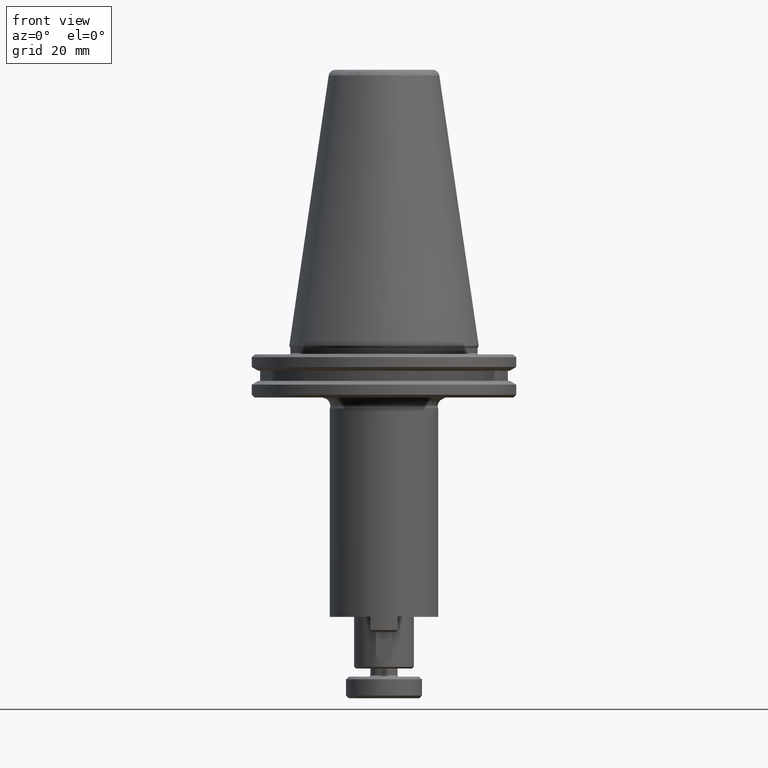
[diagram: clean part render]
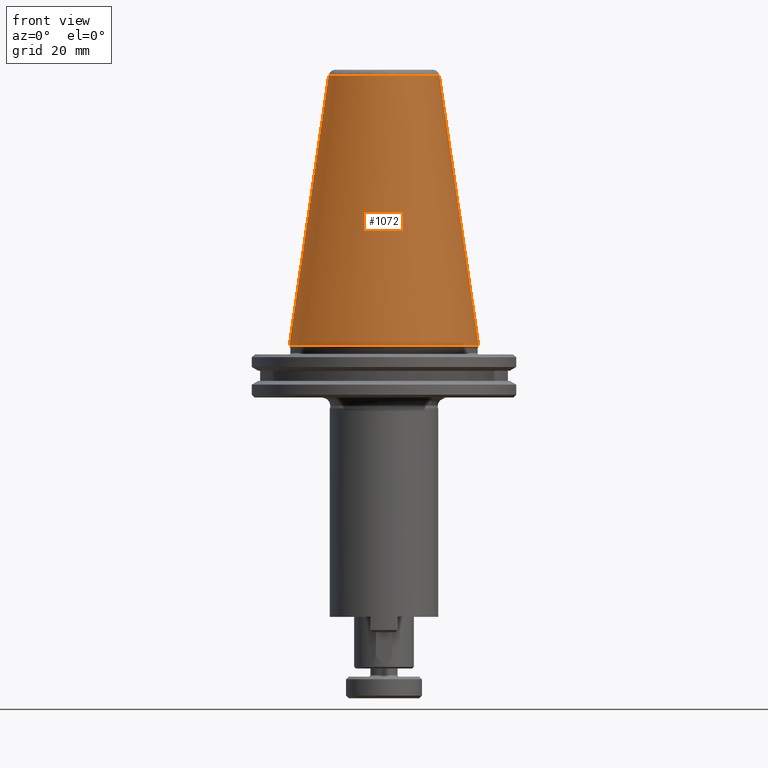
[diagram: same view with one face highlighted and labeled with its STEP entity id]
A machine part, front view. The second image highlights one B-rep face of the part: STEP entity #1072.
In plain terms, the highlighted conical surface has half-angle 8.297 deg.
Its self-contained STEP definition (entity closure, byte-faithful):
#199 = ORIENTED_EDGE ( 'NONE', *, *, #2477, .T. ) ;
#267 = DIRECTION ( 'NONE',  ( -0.1443082272649516000, 0.0000000000000000000, -0.9895327864925179700 ) ) ;
#276 = CARTESIAN_POINT ( 'NONE',  ( 89.44000914255849500, 102.4230254990840100, 98.65142735088051000 ) ) ;
#458 = VERTEX_POINT ( 'NONE', #1994 ) ;
#526 = DIRECTION ( 'NONE',  ( -1.000000000000000000, 0.0000000000000000000, -3.973597081693473100E-016 ) ) ;
#716 = CIRCLE ( 'NONE', #1484, 34.92500000000000400 ) ;
#733 = ORIENTED_EDGE ( 'NONE', *, *, #2209, .T. ) ;
#984 = AXIS2_PLACEMENT_3D ( 'NONE', #276, #1978, #526 ) ;
#1002 = ORIENTED_EDGE ( 'NONE', *, *, #2406, .F. ) ;
#1055 = AXIS2_PLACEMENT_3D ( 'NONE', #1064, #2767, #1305 ) ;
#1059 = CIRCLE ( 'NONE', #984, 34.92500000000000400 ) ;
#1064 = CARTESIAN_POINT ( 'NONE',  ( 89.44000914255849500, 102.4230254990840100, 198.2621979189482900 ) ) ;
#1072 = ADVANCED_FACE ( 'NONE', ( #2176 ), #1646, .T. ) ;
#1091 = DIRECTION ( 'NONE',  ( 0.0000000000000000000, 0.0000000000000000000, -1.000000000000000000 ) ) ;
#1105 = CARTESIAN_POINT ( 'NONE',  ( 89.44000914255849500, 102.4230254990840100, 98.65142735088051000 ) ) ;
#1108 = CARTESIAN_POINT ( 'NONE',  ( 124.3650091425584900, 102.4230254990840100, 98.65142735088051000 ) ) ;
#1155 = VECTOR ( 'NONE', #267, 1000.000000000000000 ) ;
#1182 = LINE ( 'NONE', #2697, #1155 ) ;
#1242 = VECTOR ( 'NONE', #2482, 1000.000000000000000 ) ;
#1301 = LINE ( 'NONE', #1746, #1242 ) ;
#1305 = DIRECTION ( 'NONE',  ( -1.000000000000000000, 0.0000000000000000000, 0.0000000000000000000 ) ) ;
#1350 = DIRECTION ( 'NONE',  ( -1.000000000000000000, 0.0000000000000000000, -3.973597081693473100E-016 ) ) ;
#1423 = EDGE_CURVE ( 'NONE', #2445, #1863, #2596, .T. ) ;
#1461 = CARTESIAN_POINT ( 'NONE',  ( 89.44000914255849500, 67.49802549908398000, 98.65142735088051000 ) ) ;
#1463 = ORIENTED_EDGE ( 'NONE', *, *, #2872, .T. ) ;
#1484 = AXIS2_PLACEMENT_3D ( 'NONE', #1105, #2809, #1350 ) ;
#1515 = CARTESIAN_POINT ( 'NONE',  ( 109.8383012726540200, 102.4230254955539600, 198.2621979189378600 ) ) ;
#1574 = VERTEX_POINT ( 'NONE', #1108 ) ;
#1646 = CONICAL_SURFACE ( 'NONE', #1702, 34.92500000000000400, 0.1448138465450387300 ) ;
#1702 = AXIS2_PLACEMENT_3D ( 'NONE', #2374, #1091, #2330 ) ;
#1746 = CARTESIAN_POINT ( 'NONE',  ( 124.3650091425584900, 102.4230254990840100, 98.65142735088049600 ) ) ;
#1833 = ORIENTED_EDGE ( 'NONE', *, *, #1423, .T. ) ;
#1863 = VERTEX_POINT ( 'NONE', #2857 ) ;
#1978 = DIRECTION ( 'NONE',  ( -0.0000000000000000000, -0.0000000000000000000, 1.000000000000000000 ) ) ;
#1994 = CARTESIAN_POINT ( 'NONE',  ( 54.51500914255849000, 102.4230254990840100, 98.65142735088051000 ) ) ;
#2022 = EDGE_LOOP ( 'NONE', ( #1002, #1833, #733, #1463, #199 ) ) ;
#2099 = VERTEX_POINT ( 'NONE', #1461 ) ;
#2176 = FACE_OUTER_BOUND ( 'NONE', #2022, .T. ) ;
#2209 = EDGE_CURVE ( 'NONE', #1863, #458, #1182, .T. ) ;
#2330 = DIRECTION ( 'NONE',  ( -1.000000000000000000, 0.0000000000000000000, 0.0000000000000000000 ) ) ;
#2374 = CARTESIAN_POINT ( 'NONE',  ( 89.44000914255849500, 102.4230254990840100, 98.65142735088049600 ) ) ;
#2406 = EDGE_CURVE ( 'NONE', #2445, #1574, #1301, .T. ) ;
#2445 = VERTEX_POINT ( 'NONE', #1515 ) ;
#2477 = EDGE_CURVE ( 'NONE', #2099, #1574, #716, .T. ) ;
#2482 = DIRECTION ( 'NONE',  ( 0.1443082272649516000, 1.767266086106517800E-017, -0.9895327864925179700 ) ) ;
#2596 = CIRCLE ( 'NONE', #1055, 20.39829212999011400 ) ;
#2697 = CARTESIAN_POINT ( 'NONE',  ( 54.51500914255849000, 102.4230254990840100, 98.65142735088049600 ) ) ;
#2767 = DIRECTION ( 'NONE',  ( 0.0000000000000000000, 0.0000000000000000000, -1.000000000000000000 ) ) ;
#2809 = DIRECTION ( 'NONE',  ( -0.0000000000000000000, -0.0000000000000000000, 1.000000000000000000 ) ) ;
#2857 = CARTESIAN_POINT ( 'NONE',  ( 69.04171701242813700, 102.4230254990840100, 198.2621979189365200 ) ) ;
#2872 = EDGE_CURVE ( 'NONE', #458, #2099, #1059, .T. ) ;